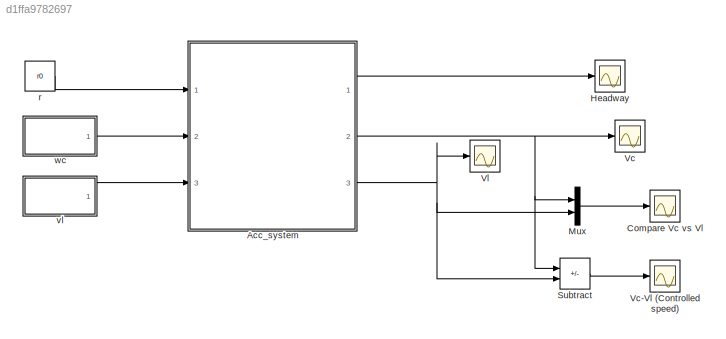
MODEL slx_d1ffa9782697
KIND model
CONFIG AbsTol = auto
CONFIG EnableMultiTasking = on
CONFIG FixedStep = 0.01
CONFIG MaxStep = auto
CONFIG MinStep = auto
CONFIG PreLoadFcn = % Ex12_5.m\ng=9.81; uw=0.0; u0=30.0; rho=1.202; Theta=0.0; ThetaPrime=0.0;\n%Controlled vehicle parameters:\nmc=1000.0; Cdc=0.5; Arc=1.5; fc=0.015;\nKc=(1/(rho*Cdc*Arc*(u0+uw))); Tc=mc*Kc;\nwc0=mc*g*(fc*sin(Theta)-cos(Theta))*ThetaPrime; Fc=(u0/Kc);\n% Lead vehicle parameters(typical):\nml = 1500.0; Cdl=0.6; Arl=1.95; fl=0.015;\nKl=(1/(rho*Cdl*Arl*(u0+uw))); Tl=ml*Kl;\nFl=(u0/Kl);\nwl0=(ml*g*(fl*sin(Theta)-...<+358ch>
CONFIG RelTol = 1e-3
CONFIG SampleTimeConstraint = Unconstrained
CONFIG Solver = ode1
CONFIG SolverName = ode1
CONFIG StartTime = 0.0
CONFIG StopTime = 30
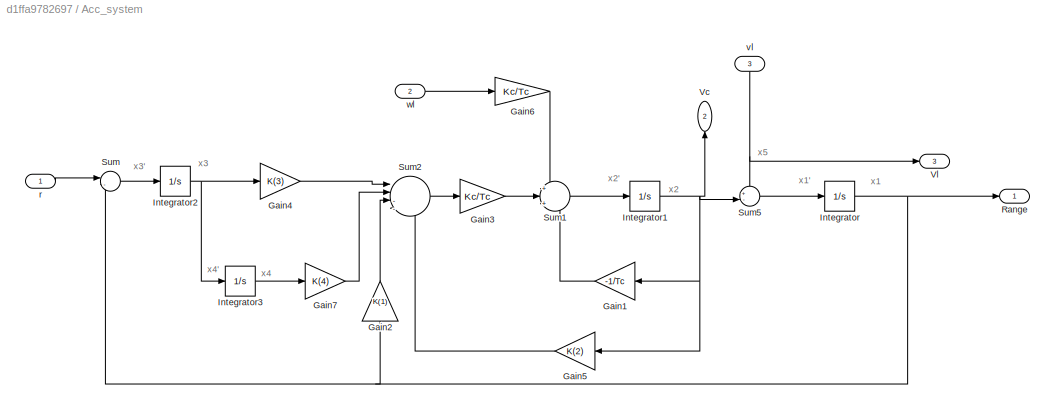
BLOCK [SubSystem] Acc_system
  Ports = [3, 3]
  RequestExecContextInheritance = off
BLOCK [Gain] Acc_system/Gain1
  Gain = -1/Tc
  NameLocation = top
BLOCK [Gain] Acc_system/Gain2
  Gain = K(1)
  NameLocation = right
BLOCK [Gain] Acc_system/Gain3
  Gain = Kc/Tc
BLOCK [Gain] Acc_system/Gain4
  Gain = K(3)
BLOCK [Gain] Acc_system/Gain5
  Gain = K(2)
  NameLocation = top
BLOCK [Gain] Acc_system/Gain6
  Gain = Kc/Tc
BLOCK [Gain] Acc_system/Gain7
  Gain = K(4)
BLOCK [Integrator] Acc_system/Integrator
  InitialCondition = r0
  Ports = [1, 1]
BLOCK [Integrator] Acc_system/Integrator1
  InitialCondition = u0
  Ports = [1, 1]
BLOCK [Integrator] Acc_system/Integrator2
  Ports = [1, 1]
BLOCK [Integrator] Acc_system/Integrator3
  InitialCondition = -(u0/Kc+K(1)*r0+K(2)*u0)/K(4)
  Ports = [1, 1]
BLOCK [Outport] Acc_system/Range
BLOCK [Sum] Acc_system/Sum
  Inputs = |-+
  Ports = [2, 1]
BLOCK [Sum] Acc_system/Sum1
  Inputs = +|+|+
  Ports = [3, 1]
BLOCK [Sum] Acc_system/Sum2
  Inputs = ||----
  Ports = [4, 1]
BLOCK [Sum] Acc_system/Sum5
  Inputs = +-|
  Ports = [2, 1]
BLOCK [Outport] Acc_system/Vc
  NameLocation = right
  Port = 2
BLOCK [Outport] Acc_system/Vl
  Port = 3
BLOCK [Inport] Acc_system/r
BLOCK [Inport] Acc_system/vl
  NameLocation = right
  Port = 3
BLOCK [Inport] Acc_system/wl
  Port = 2
BLOCK [Scope] Compare Vc vs Vl
  Floating = off
  NumInputPorts = 1
  Ports = [1]
  ScopeSpecificationString = Simulink.scopes.TimeScopeBlockCfg('CurrentConfiguration', extmgr.ConfigurationSet(extmgr.Configuration('Core','General UI',true),extmgr.Configuration('Core','Source UI',true),extmgr.Configuration('Sources','WiredSimulink',true,'DataLogging',true,'DataLoggingVariableName','Vc_simul1','DataLoggingSaveFormat','Array','DataLoggingDecimation','1','DataLoggingDecimateData',true),extmgr.Configuration('Vi...<+1678ch>
BLOCK [Scope] Headway
  Floating = off
  NumInputPorts = 1
  Ports = [1]
  ScopeSpecificationString = Simulink.scopes.TimeScopeBlockCfg('CurrentConfiguration', extmgr.ConfigurationSet(extmgr.Configuration('Core','General UI',true),extmgr.Configuration('Core','Source UI',true),extmgr.Configuration('Sources','WiredSimulink',true,'DataLogging',true,'DataLoggingVariableName','Range_simul','DataLoggingSaveFormat','Array','DataLoggingDecimation','1','DataLoggingDecimateData',true),extmgr.Configuration('...<+1985ch>
BLOCK [Mux] Mux
  DisplayOption = bar
  Inputs = 2
  Ports = [2, 1]
BLOCK [Sum] Subtract
  IconShape = rectangular
  Inputs = +-
  Ports = [2, 1]
BLOCK [Scope] Vc
  Floating = off
  NumInputPorts = 1
  Ports = [1]
  ScopeSpecificationString = Simulink.scopes.TimeScopeBlockCfg('CurrentConfiguration', extmgr.ConfigurationSet(extmgr.Configuration('Core','General UI',true),extmgr.Configuration('Core','Source UI',true),extmgr.Configuration('Sources','WiredSimulink',true,'DataLogging',true,'DataLoggingVariableName','Vc_simul','DataLoggingSaveFormat','Array','DataLoggingDecimation','1','DataLoggingDecimateData',true),extmgr.Configuration('Vis...<+1978ch>
BLOCK [Scope] Vc-Vl (Controlled speed)
  Floating = off
  NumInputPorts = 1
  Ports = [1]
  ScopeSpecificationString = C++SS(StrPVP('Location','[-923, 897, -205, 1372]'),StrPVP('Open','off'),MxPVP('AxesTitles',54,'struct(''axes1'',''%<SignalLabel>'')'),MxPVP('ScopeGraphics',57,'struct(''FigureColor'',''[0.5 0.5 0.5]'',''AxesColor'',''[0 0 0]'',''AxesTickColor'',''[1 1 1]'',''LineColors'',''[1 1 0;1 0 1;0 1 1;1 0 0;0 1 0;0 0 1]'',''LineStyles'',''-|-|-|-|-|-'',''LineWidths'',''[0.5 0.5 0.5 0.5 0.5 0.5]'',''MarkerSt...<+303ch>
BLOCK [Scope] Vl
  Floating = off
  NumInputPorts = 1
  Ports = [1]
  ScopeSpecificationString = C++SS(StrPVP('Location','[304, 60, 1670, 738]'),StrPVP('Open','off'),MxPVP('AxesTitles',54,'struct(''axes1'',''%<SignalLabel>'')'),MxPVP('ScopeGraphics',57,'struct(''FigureColor'',''[0.5 0.5 0.5]'',''AxesColor'',''[0 0 0]'',''AxesTickColor'',''[1 1 1]'',''LineColors'',''[1 1 0;1 0 1;0 1 1;1 0 0;0 1 0;0 0 1]'',''LineStyles'',''-|-|-|-|-|-'',''LineWidths'',''[0.5 0.5 0.5 0.5 0.5 0.5]'',''MarkerStyle...<+254ch>
BLOCK [Constant] r
  Value = r0
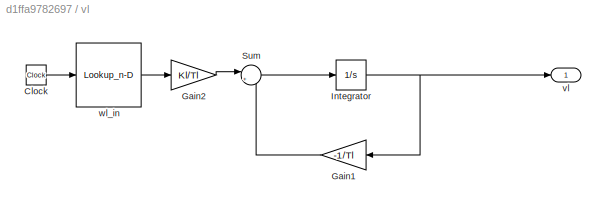
BLOCK [SubSystem] vl
  Ports = [0, 1]
  RequestExecContextInheritance = off
BLOCK [Clock] vl/Clock
BLOCK [Gain] vl/Gain1
  Gain = -1/Tl
  NameLocation = top
BLOCK [Gain] vl/Gain2
  Gain = Kl/Tl
BLOCK [Integrator] vl/Integrator
  InitialCondition = u0
  Ports = [1, 1]
BLOCK [Sum] vl/Sum
  Inputs = |++
  Ports = [2, 1]
BLOCK [Outport] vl/vl
BLOCK [Lookup_n-D] vl/wl_in
  BreakpointsForDimension1 = [0:0.1:20]
  NumberOfTableDimensions = 1
  Ports = [1, 1]
  RndMeth = Simplest
  Table = wl
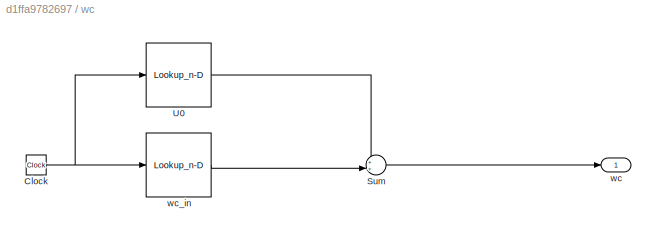
BLOCK [SubSystem] wc
  Ports = [0, 1]
  RequestExecContextInheritance = off
BLOCK [Clock] wc/Clock
BLOCK [Sum] wc/Sum
  Inputs = ++|
  Ports = [2, 1]
BLOCK [Lookup_n-D] wc/U0
  BreakpointsForDimension1 = [0:0.1:20]
  NumberOfTableDimensions = 1
  Ports = [1, 1]
  RndMeth = Simplest
  Table = U0
BLOCK [Outport] wc/wc
BLOCK [Lookup_n-D] wc/wc_in
  BreakpointsForDimension1 = [0:0.1:20]
  NumberOfTableDimensions = 1
  Ports = [1, 1]
  RndMeth = Simplest
  Table = wc
ANNOTATION Acc_system: x1
ANNOTATION Acc_system: x1'
ANNOTATION Acc_system: x2
ANNOTATION Acc_system: x2'
ANNOTATION Acc_system: x3
ANNOTATION Acc_system: x3'
ANNOTATION Acc_system: x4
ANNOTATION Acc_system: x4'
ANNOTATION Acc_system: x5
LINE Acc_system/Gain1:1 -> Acc_system/Sum1:3
LINE Acc_system/Gain2:1 -> Acc_system/Sum2:3
LINE Acc_system/Gain3:1 -> Acc_system/Sum1:2
LINE Acc_system/Gain4:1 -> Acc_system/Sum2:1
LINE Acc_system/Gain5:1 -> Acc_system/Sum2:4
LINE Acc_system/Gain6:1 -> Acc_system/Sum1:1
LINE Acc_system/Gain7:1 -> Acc_system/Sum2:2
NET Acc_system/Integrator1:1 -> Acc_system/Gain1:1, Acc_system/Gain5:1, Acc_system/Sum5:2, Acc_system/Vc:1
NET Acc_system/Integrator2:1 -> Acc_system/Gain4:1, Acc_system/Integrator3:1
LINE Acc_system/Integrator3:1 -> Acc_system/Gain7:1
NET Acc_system/Integrator:1 -> Acc_system/Gain2:1, Acc_system/Range:1, Acc_system/Sum:2
LINE Acc_system/Sum1:1 -> Acc_system/Integrator1:1
LINE Acc_system/Sum2:1 -> Acc_system/Gain3:1
LINE Acc_system/Sum5:1 -> Acc_system/Integrator:1
LINE Acc_system/Sum:1 -> Acc_system/Integrator2:1
LINE Acc_system/r:1 -> Acc_system/Sum:1
NET Acc_system/vl:1 -> Acc_system/Sum5:1, Acc_system/Vl:1
LINE Acc_system/wl:1 -> Acc_system/Gain6:1
LINE Acc_system:1 -> Headway:1
NET Acc_system:2 -> Mux:1, Subtract:1, Vc:1
NET Acc_system:3 -> Mux:2, Subtract:2, Vl:1
LINE Mux:1 -> Compare Vc vs Vl:1
LINE Subtract:1 -> Vc-Vl (Controlled speed):1
LINE r:1 -> Acc_system:1
LINE vl/Clock:1 -> vl/wl_in:1
LINE vl/Gain1:1 -> vl/Sum:2
LINE vl/Gain2:1 -> vl/Sum:1
NET vl/Integrator:1 -> vl/Gain1:1, vl/vl:1
LINE vl/Sum:1 -> vl/Integrator:1
LINE vl/wl_in:1 -> vl/Gain2:1
LINE vl:1 -> Acc_system:3
NET wc/Clock:1 -> wc/U0:1, wc/wc_in:1
LINE wc/Sum:1 -> wc/wc:1
LINE wc/U0:1 -> wc/Sum:1
LINE wc/wc_in:1 -> wc/Sum:2
LINE wc:1 -> Acc_system:2
note: NET lines group one-source signal fan-out (src -> all destinations, sorted); 1:1 wires keep LINE
